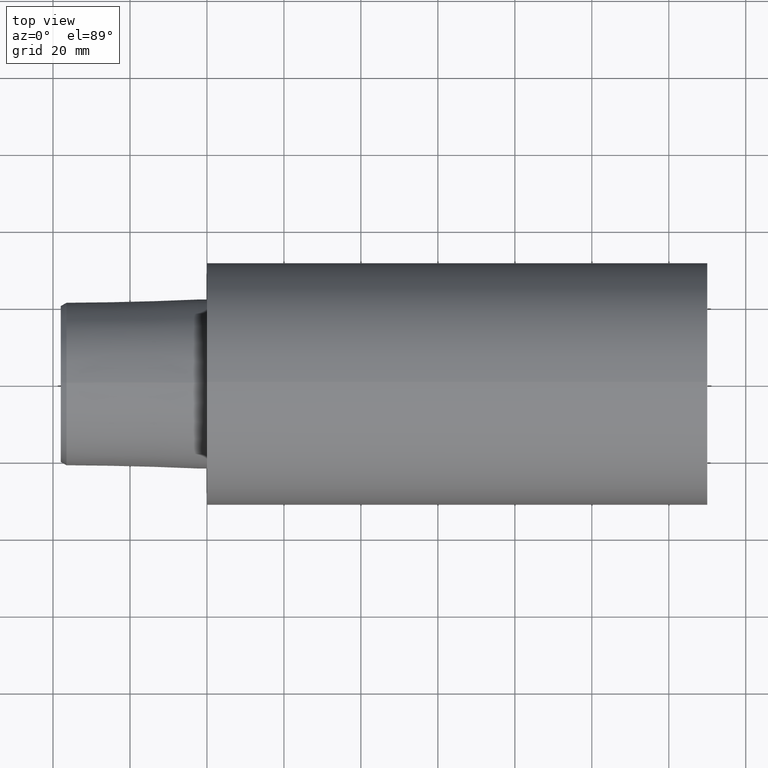
[diagram: clean part render]
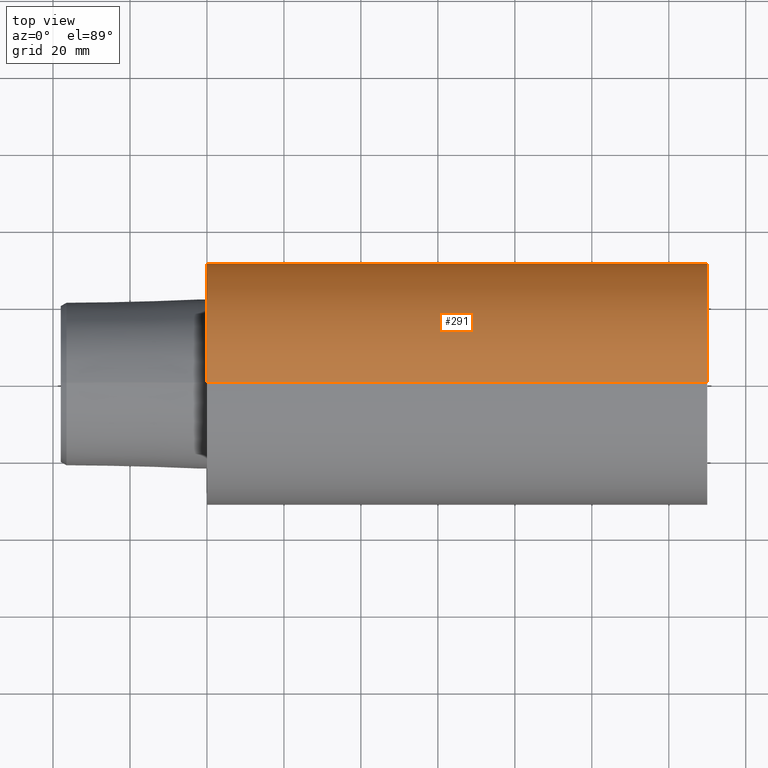
[diagram: same view with one face highlighted and labeled with its STEP entity id]
A machine part, top view. The second image highlights one B-rep face of the part: STEP entity #291.
In plain terms, the highlighted cylindrical surface (partial cylindrical patch) has radius 31.5 mm, axis along (-1, 0, 0).
Its self-contained STEP definition (entity closure, byte-faithful):
#1 = CARTESIAN_POINT ( 'NONE',  ( -1.638711037459195739E-09, 3.857637413726965239E-15, -31.49999997070834823 ) ) ;
#18 = VERTEX_POINT ( 'NONE', #55 ) ;
#25 = CARTESIAN_POINT ( 'NONE',  ( 129.9999998657614242, 0.000000000000000000, 0.000000000000000000 ) ) ;
#27 = DIRECTION ( 'NONE',  ( -1.000000000000000000, 0.000000000000000000, 0.000000000000000000 ) ) ;
#41 = AXIS2_PLACEMENT_3D ( 'NONE', #135, #27, #195 ) ;
#43 = EDGE_CURVE ( 'NONE', #77, #72, #53, .T. ) ;
#53 = LINE ( 'NONE', #225, #113 ) ;
#55 = CARTESIAN_POINT ( 'NONE',  ( -1.638711037459195739E-09, 0.000000000000000000, 31.49999997070834823 ) ) ;
#72 = VERTEX_POINT ( 'NONE', #1 ) ;
#77 = VERTEX_POINT ( 'NONE', #104 ) ;
#87 = CIRCLE ( 'NONE', #136, 31.49999997070834823 ) ;
#104 = CARTESIAN_POINT ( 'NONE',  ( 129.9999998657614242, 3.857637413726965239E-15, -31.49999997070834823 ) ) ;
#105 = EDGE_CURVE ( 'NONE', #18, #72, #153, .T. ) ;
#113 = VECTOR ( 'NONE', #164, 1000.000000000000000 ) ;
#118 = FACE_OUTER_BOUND ( 'NONE', #127, .T. ) ;
#120 = CARTESIAN_POINT ( 'NONE',  ( -37.99999996124000035, 0.000000000000000000, 31.49999997070834823 ) ) ;
#125 = ORIENTED_EDGE ( 'NONE', *, *, #43, .T. ) ;
#127 = EDGE_LOOP ( 'NONE', ( #156, #125, #278, #154 ) ) ;
#135 = CARTESIAN_POINT ( 'NONE',  ( -1.638711037459195739E-09, 0.000000000000000000, 0.000000000000000000 ) ) ;
#136 = AXIS2_PLACEMENT_3D ( 'NONE', #25, #327, #220 ) ;
#142 = AXIS2_PLACEMENT_3D ( 'NONE', #312, #169, #257 ) ;
#146 = DIRECTION ( 'NONE',  ( -1.000000000000000000, 0.000000000000000000, 0.000000000000000000 ) ) ;
#148 = VECTOR ( 'NONE', #146, 1000.000000000000000 ) ;
#151 = EDGE_CURVE ( 'NONE', #160, #77, #87, .T. ) ;
#153 = CIRCLE ( 'NONE', #41, 31.49999997070834823 ) ;
#154 = ORIENTED_EDGE ( 'NONE', *, *, #203, .F. ) ;
#156 = ORIENTED_EDGE ( 'NONE', *, *, #151, .T. ) ;
#160 = VERTEX_POINT ( 'NONE', #325 ) ;
#164 = DIRECTION ( 'NONE',  ( -1.000000000000000000, 0.000000000000000000, 0.000000000000000000 ) ) ;
#169 = DIRECTION ( 'NONE',  ( -1.000000000000000000, 0.000000000000000000, 0.000000000000000000 ) ) ;
#195 = DIRECTION ( 'NONE',  ( 0.000000000000000000, 0.000000000000000000, 1.000000000000000000 ) ) ;
#203 = EDGE_CURVE ( 'NONE', #160, #18, #288, .T. ) ;
#220 = DIRECTION ( 'NONE',  ( 0.000000000000000000, 0.000000000000000000, 1.000000000000000000 ) ) ;
#225 = CARTESIAN_POINT ( 'NONE',  ( -37.99999996124000035, 3.857637413726965239E-15, -31.49999997070834823 ) ) ;
#257 = DIRECTION ( 'NONE',  ( 0.000000000000000000, 0.000000000000000000, 1.000000000000000000 ) ) ;
#278 = ORIENTED_EDGE ( 'NONE', *, *, #105, .F. ) ;
#288 = LINE ( 'NONE', #120, #148 ) ;
#291 = ADVANCED_FACE ( 'NONE', ( #118 ), #334, .T. ) ;
#312 = CARTESIAN_POINT ( 'NONE',  ( -37.99999996124000035, 0.000000000000000000, 0.000000000000000000 ) ) ;
#325 = CARTESIAN_POINT ( 'NONE',  ( 129.9999998657614242, 0.000000000000000000, 31.49999997070834823 ) ) ;
#327 = DIRECTION ( 'NONE',  ( -1.000000000000000000, 0.000000000000000000, 0.000000000000000000 ) ) ;
#334 = CYLINDRICAL_SURFACE ( 'NONE', #142, 31.49999997070834823 ) ;